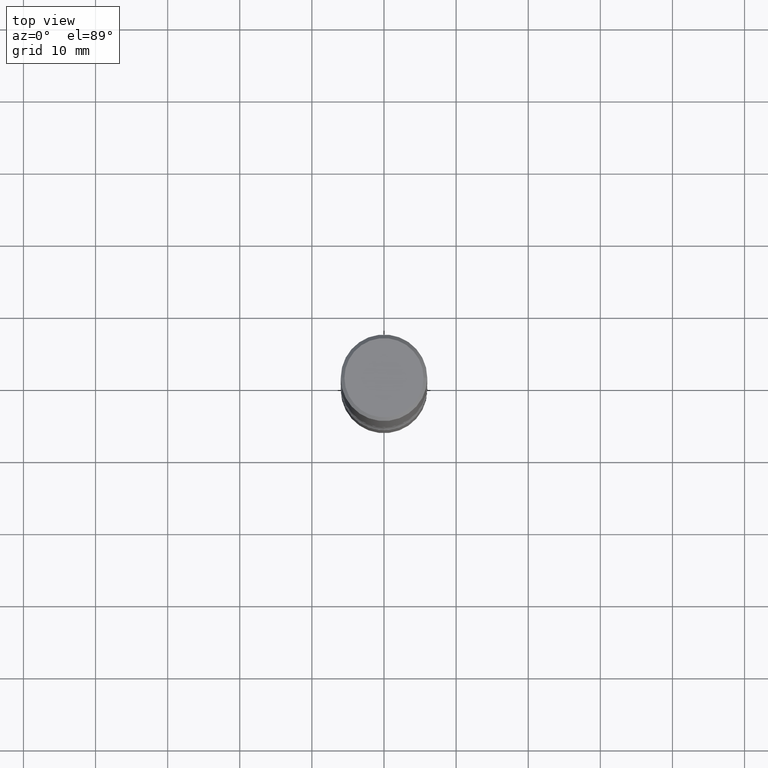
[diagram: clean part render]
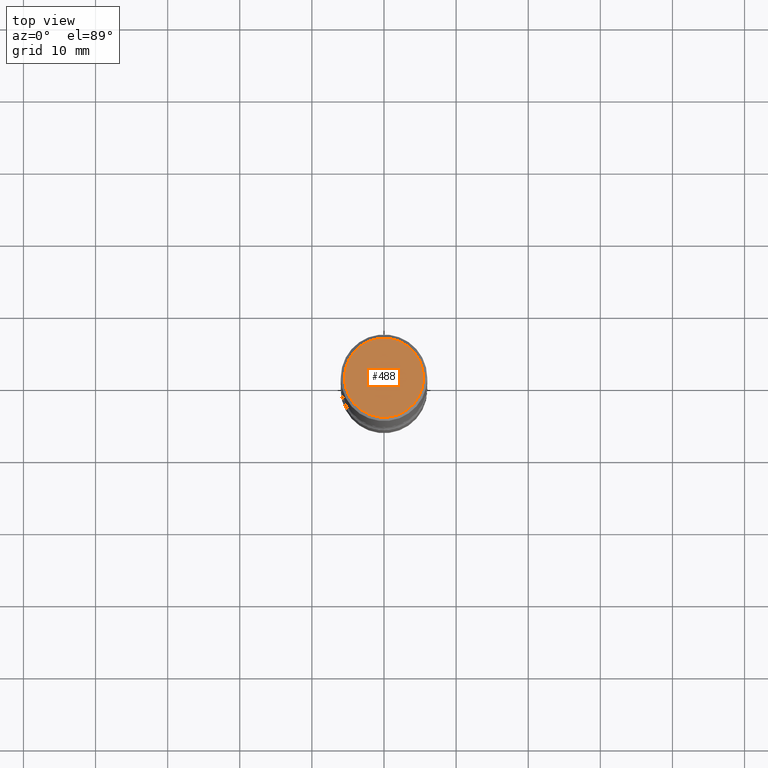
[diagram: same view with one face highlighted and labeled with its STEP entity id]
A machine part, top view. The second image highlights one B-rep face of the part: STEP entity #488.
In plain terms, the highlighted planar face has unit normal (0, -0, -1).
Its self-contained STEP definition (entity closure, byte-faithful):
#19 = AXIS2_PLACEMENT_3D ( 'NONE', #202, #81, #155 ) ;
#46 = CARTESIAN_POINT ( 'NONE',  ( -1.043851414335219820E-46, 1.490343170380447200E-32, 4.268512490100411279E-18 ) ) ;
#81 = DIRECTION ( 'NONE',  ( -2.445468806185136597E-29, 3.491481338843145583E-15, 1.000000000000000000 ) ) ;
#92 = VERTEX_POINT ( 'NONE', #510 ) ;
#103 = CARTESIAN_POINT ( 'NONE',  ( 1.509716530915769534E-15, 0.2161999999999998368, -7.527240092128373149E-16 ) ) ;
#106 = VERTEX_POINT ( 'NONE', #379 ) ;
#138 = AXIS2_PLACEMENT_3D ( 'NONE', #46, #172, #523 ) ;
#154 = EDGE_LOOP ( 'NONE', ( #400, #179 ) ) ;
#155 = DIRECTION ( 'NONE',  ( 1.000000000000000000, -6.982962677686266711E-15, 4.876217060660159599E-29 ) ) ;
#172 = DIRECTION ( 'NONE',  ( -2.445468806185136597E-29, 3.491481338843145583E-15, 1.000000000000000000 ) ) ;
#179 = ORIENTED_EDGE ( 'NONE', *, *, #522, .T. ) ;
#189 = CIRCLE ( 'NONE', #19, 0.2161999999999998368 ) ;
#202 = CARTESIAN_POINT ( 'NONE',  ( -1.043851414335219820E-46, 1.490343170380447200E-32, 4.268512490100411279E-18 ) ) ;
#237 = DIRECTION ( 'NONE',  ( -1.000000000000000000, 6.982962677686265922E-15, -4.876176775795935793E-29 ) ) ;
#256 = EDGE_CURVE ( 'NONE', #106, #92, #320, .T. ) ;
#277 = PLANE ( 'NONE',  #441 ) ;
#320 = CIRCLE ( 'NONE', #138, 0.2161999999999998368 ) ;
#379 = CARTESIAN_POINT ( 'NONE',  ( -0.2161999999999998368, 1.544631344304201183E-15, 4.268512490089730842E-18 ) ) ;
#400 = ORIENTED_EDGE ( 'NONE', *, *, #256, .T. ) ;
#441 = AXIS2_PLACEMENT_3D ( 'NONE', #103, #452, #237 ) ;
#452 = DIRECTION ( 'NONE',  ( 2.438088387897960049E-29, -3.491481338843145188E-15, -1.000000000000000000 ) ) ;
#488 = ADVANCED_FACE ( 'NONE', ( #497 ), #277, .F. ) ;
#497 = FACE_OUTER_BOUND ( 'NONE', #154, .T. ) ;
#510 = CARTESIAN_POINT ( 'NONE',  ( 0.2161999999999998368, -1.586759460484351002E-15, 4.268512490111238857E-18 ) ) ;
#522 = EDGE_CURVE ( 'NONE', #92, #106, #189, .T. ) ;
#523 = DIRECTION ( 'NONE',  ( 1.000000000000000000, -6.982962677686266711E-15, 4.876217060660159599E-29 ) ) ;